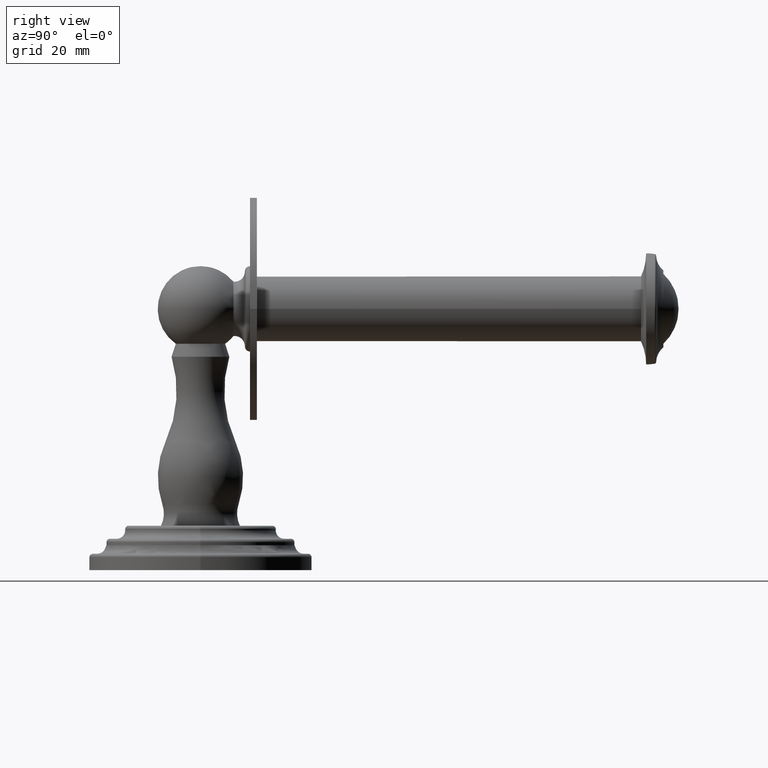
[diagram: clean part render]
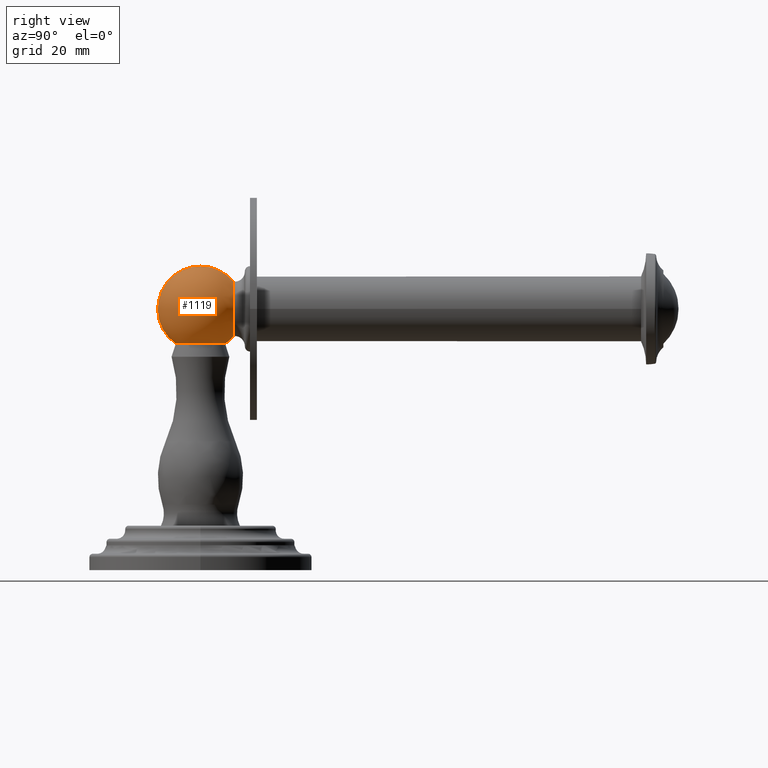
[diagram: same view with one face highlighted and labeled with its STEP entity id]
A machine part, right view. The second image highlights one B-rep face of the part: STEP entity #1119.
In plain terms, the highlighted spherical surface has radius 12.5222 mm.
Its self-contained STEP definition (entity closure, byte-faithful):
#264=CARTESIAN_POINT('',(0.E0,3.792413479567E-1,3.012E0));
#265=DIRECTION('',(0.E0,-1.E0,0.E0));
#266=DIRECTION('',(0.E0,0.E0,-1.E0));
#267=AXIS2_PLACEMENT_3D('',#264,#265,#266);
#269=CARTESIAN_POINT('',(0.E0,0.E0,2.609372690941E0));
#270=DIRECTION('',(0.E0,0.E0,1.E0));
#271=DIRECTION('',(0.E0,-1.E0,0.E0));
#272=AXIS2_PLACEMENT_3D('',#269,#270,#271);
#307=CARTESIAN_POINT('',(0.E0,0.E0,3.012E0));
#308=DIRECTION('',(1.E0,0.E0,0.E0));
#309=DIRECTION('',(0.E0,7.692522270927E-1,6.389452332657E-1));
#310=AXIS2_PLACEMENT_3D('',#307,#308,#309);
#312=CARTESIAN_POINT('',(0.E0,0.E0,3.012E0));
#313=DIRECTION('',(-1.E0,0.E0,0.E0));
#314=DIRECTION('',(0.E0,-5.770791075051E-1,-8.166882536691E-1));
#315=AXIS2_PLACEMENT_3D('',#312,#313,#314);
#322=CARTESIAN_POINT('',(0.E0,0.E0,3.012E0));
#323=DIRECTION('',(1.E0,0.E0,0.E0));
#324=DIRECTION('',(0.E0,5.770791075051E-1,-8.166882536691E-1));
#325=AXIS2_PLACEMENT_3D('',#322,#323,#324);
#599=CARTESIAN_POINT('',(0.E0,-2.845E-1,2.609372690941E0));
#600=VERTEX_POINT('',#599);
#601=CARTESIAN_POINT('',(0.E0,0.E0,3.505E0));
#602=VERTEX_POINT('',#601);
#609=CARTESIAN_POINT('',(0.E0,2.845E-1,2.609372690941E0));
#610=VERTEX_POINT('',#609);
#611=CARTESIAN_POINT('',(0.E0,3.792413479567E-1,2.697E0));
#612=CARTESIAN_POINT('',(0.E0,3.792413479567E-1,3.327E0));
#613=VERTEX_POINT('',#611);
#614=VERTEX_POINT('',#612);
#1103=CARTESIAN_POINT('',(0.E0,0.E0,3.012E0));
#1104=DIRECTION('',(0.E0,0.E0,1.E0));
#1105=DIRECTION('',(0.E0,-1.E0,0.E0));
#1106=AXIS2_PLACEMENT_3D('',#1103,#1104,#1105);
#1107=SPHERICAL_SURFACE('',#1106,4.93E-1);
#1109=ORIENTED_EDGE('',*,*,#1108,.F.);
#1111=ORIENTED_EDGE('',*,*,#1110,.F.);
#1112=ORIENTED_EDGE('',*,*,#1096,.F.);
#1114=ORIENTED_EDGE('',*,*,#1113,.T.);
#1116=ORIENTED_EDGE('',*,*,#1115,.F.);
#1117=EDGE_LOOP('',(#1109,#1111,#1112,#1114,#1116));
#1118=FACE_OUTER_BOUND('',#1117,.F.);
#1119=ADVANCED_FACE('',(#1118),#1107,.T.);
#268=CIRCLE('',#267,3.15E-1);
#273=CIRCLE('',#272,2.845E-1);
#311=CIRCLE('',#310,4.93E-1);
#316=CIRCLE('',#315,4.93E-1);
#326=CIRCLE('',#325,4.93E-1);
#1096=EDGE_CURVE('',#600,#610,#273,.T.);
#1108=EDGE_CURVE('',#613,#614,#268,.T.);
#1110=EDGE_CURVE('',#610,#613,#326,.T.);
#1113=EDGE_CURVE('',#600,#602,#316,.T.);
#1115=EDGE_CURVE('',#614,#602,#311,.T.);